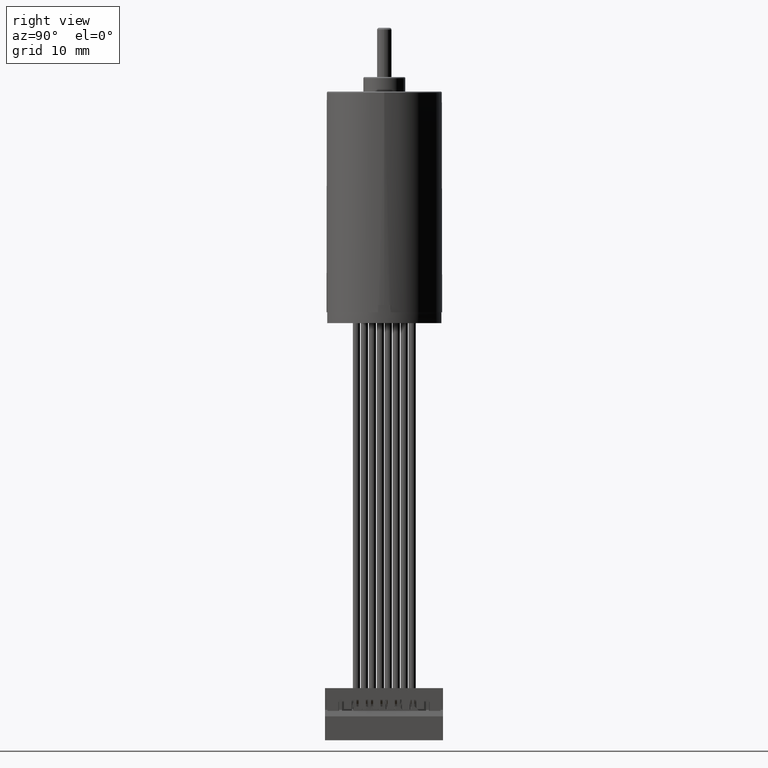
[diagram: clean part render]
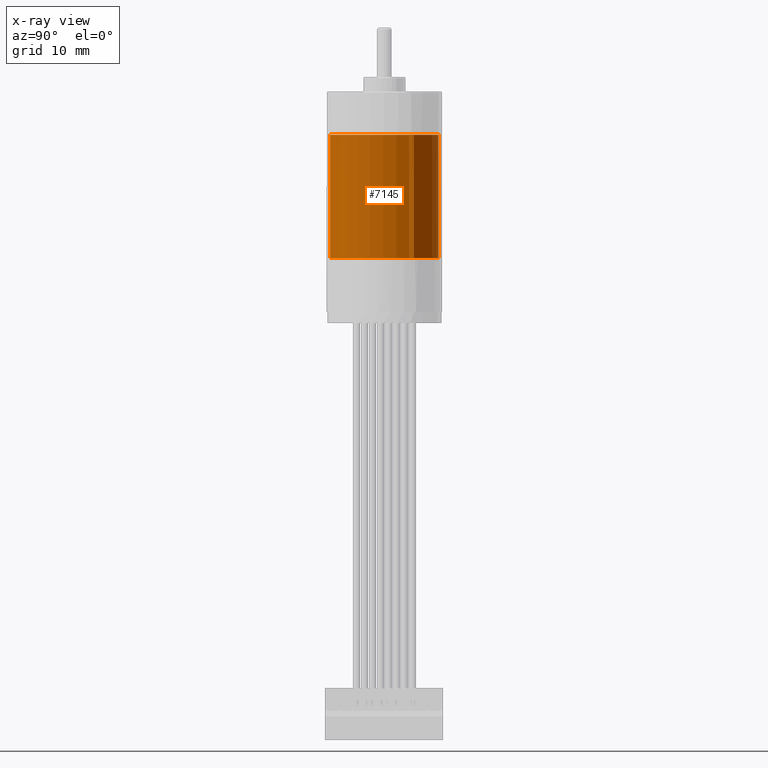
[diagram: x-ray — body ghosted, one internal face saturated and labeled with its STEP entity id]
A machine part, right view, then the same camera in x-ray: the body is ghosted and one INTERNAL B-rep face — a face not visible from any outside direction — is saturated and labeled: STEP entity #7145.
In plain terms, the highlighted cylindrical surface (partial cylindrical patch) has radius 7.5 mm, axis along (0, 0, 1).
Its self-contained STEP definition (entity closure, byte-faithful):
#5314=CARTESIAN_POINT('',(0.E0,0.E0,0.E0));
#5315=DIRECTION('',(0.E0,0.E0,-1.E0));
#5316=DIRECTION('',(-4.893953760702E-2,-9.988017429194E-1,0.E0));
#5317=AXIS2_PLACEMENT_3D('',#5314,#5315,#5316);
#5319=DIRECTION('',(0.E0,0.E0,1.E0));
#5320=VECTOR('',#5319,1.7E1);
#5321=CARTESIAN_POINT('',(3.670465320526E-1,-7.491013071895E0,0.E0));
#5322=LINE('',#5321,#5320);
#5323=CARTESIAN_POINT('',(0.E0,0.E0,1.7E1));
#5324=DIRECTION('',(0.E0,0.E0,1.E0));
#5325=DIRECTION('',(4.893953760702E-2,-9.988017429194E-1,0.E0));
#5326=AXIS2_PLACEMENT_3D('',#5323,#5324,#5325);
#5328=DIRECTION('',(0.E0,0.E0,1.E0));
#5329=VECTOR('',#5328,1.7E1);
#5330=CARTESIAN_POINT('',(-3.670465320526E-1,-7.491013071895E0,0.E0));
#5331=LINE('',#5330,#5329);
#5668=CARTESIAN_POINT('',(3.670465320526E-1,-7.491013071895E0,1.7E1));
#5669=CARTESIAN_POINT('',(-3.670465320526E-1,-7.491013071895E0,1.7E1));
#5670=VERTEX_POINT('',#5668);
#5671=VERTEX_POINT('',#5669);
#5672=CARTESIAN_POINT('',(-3.670465320526E-1,-7.491013071895E0,0.E0));
#5673=CARTESIAN_POINT('',(3.670465320526E-1,-7.491013071895E0,0.E0));
#5674=VERTEX_POINT('',#5672);
#5675=VERTEX_POINT('',#5673);
#7132=CARTESIAN_POINT('',(0.E0,0.E0,0.E0));
#7133=DIRECTION('',(0.E0,0.E0,1.E0));
#7134=DIRECTION('',(1.E0,0.E0,0.E0));
#7135=AXIS2_PLACEMENT_3D('',#7132,#7133,#7134);
#7136=CYLINDRICAL_SURFACE('',#7135,7.5E0);
#7137=ORIENTED_EDGE('',*,*,#5681,.T.);
#7139=ORIENTED_EDGE('',*,*,#7138,.T.);
#7140=ORIENTED_EDGE('',*,*,#5878,.T.);
#7142=ORIENTED_EDGE('',*,*,#7141,.F.);
#7143=EDGE_LOOP('',(#7137,#7139,#7140,#7142));
#7144=FACE_OUTER_BOUND('',#7143,.F.);
#7145=ADVANCED_FACE('',(#7144),#7136,.T.);
#5318=CIRCLE('',#5317,7.5E0);
#5327=CIRCLE('',#5326,7.5E0);
#5681=EDGE_CURVE('',#5674,#5675,#5318,.T.);
#5878=EDGE_CURVE('',#5670,#5671,#5327,.T.);
#7138=EDGE_CURVE('',#5675,#5670,#5322,.T.);
#7141=EDGE_CURVE('',#5674,#5671,#5331,.T.);